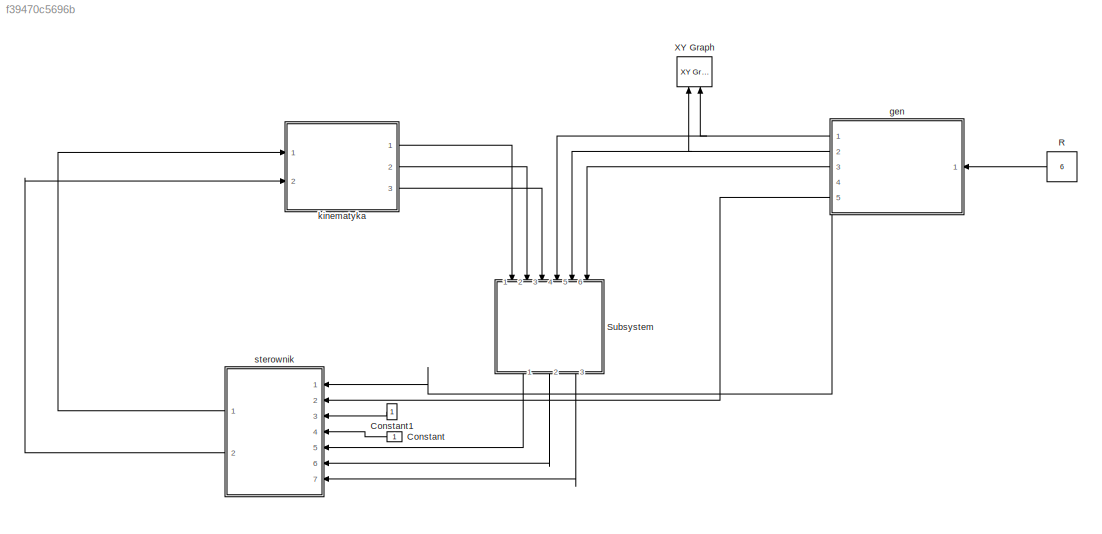
MODEL slx_f39470c5696b
KIND model
CONFIG AbsTol = auto
CONFIG FixedStep = auto
CONFIG MaxStep = auto
CONFIG MinStep = auto
CONFIG RelTol = 1e-3
CONFIG SampleTimeConstraint = Unconstrained
CONFIG Solver = VariableStepAuto
CONFIG SolverMode = Auto
CONFIG SolverName = VariableStepAuto
CONFIG StartTime = 0.0
CONFIG StopTime = 10.0
BLOCK [Constant] Constant
BLOCK [Constant] Constant1
BLOCK [Constant] R
  Value = 6
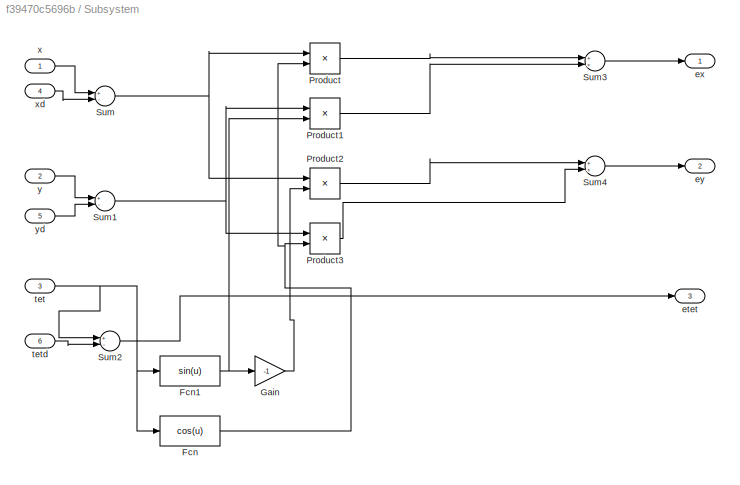
BLOCK [SubSystem] Subsystem
  Ports = [6, 3]
  RequestExecContextInheritance = off
  Variant = off
BLOCK [Fcn] Subsystem/Fcn
  Expr = cos(u)
BLOCK [Fcn] Subsystem/Fcn1
  Expr = sin(u)
BLOCK [Gain] Subsystem/Gain
  Gain = -1
  OutDataTypeStr = Inherit: Inherit via internal rule
  ParamDataTypeStr = Inherit: Inherit via internal rule
  SaturateOnIntegerOverflow = off
BLOCK [Product] Subsystem/Product
  InputSameDT = off
  OutDataTypeStr = Inherit: Inherit via internal rule
  Ports = [2, 1]
  RndMeth = Floor
  SaturateOnIntegerOverflow = off
BLOCK [Product] Subsystem/Product1
  InputSameDT = off
  OutDataTypeStr = Inherit: Inherit via internal rule
  Ports = [2, 1]
  RndMeth = Floor
  SaturateOnIntegerOverflow = off
BLOCK [Product] Subsystem/Product2
  InputSameDT = off
  OutDataTypeStr = Inherit: Inherit via internal rule
  Ports = [2, 1]
  RndMeth = Floor
  SaturateOnIntegerOverflow = off
BLOCK [Product] Subsystem/Product3
  InputSameDT = off
  OutDataTypeStr = Inherit: Inherit via internal rule
  Ports = [2, 1]
  RndMeth = Floor
  SaturateOnIntegerOverflow = off
BLOCK [Sum] Subsystem/Sum
  InputSameDT = off
  Inputs = +-
  OutDataTypeStr = Inherit: Inherit via internal rule
  Ports = [2, 1]
  SaturateOnIntegerOverflow = off
BLOCK [Sum] Subsystem/Sum1
  InputSameDT = off
  Inputs = +-
  OutDataTypeStr = Inherit: Inherit via internal rule
  Ports = [2, 1]
  SaturateOnIntegerOverflow = off
BLOCK [Sum] Subsystem/Sum2
  InputSameDT = off
  Inputs = +-
  OutDataTypeStr = Inherit: Inherit via internal rule
  Ports = [2, 1]
  SaturateOnIntegerOverflow = off
BLOCK [Sum] Subsystem/Sum3
  InputSameDT = off
  OutDataTypeStr = Inherit: Inherit via internal rule
  Ports = [2, 1]
  SaturateOnIntegerOverflow = off
BLOCK [Sum] Subsystem/Sum4
  InputSameDT = off
  OutDataTypeStr = Inherit: Inherit via internal rule
  Ports = [2, 1]
  SaturateOnIntegerOverflow = off
BLOCK [Outport] Subsystem/etet
  IconDisplay = Port number
  Port = 3
BLOCK [Outport] Subsystem/ex
  IconDisplay = Port number
BLOCK [Outport] Subsystem/ey
  IconDisplay = Port number
  Port = 2
BLOCK [Inport] Subsystem/tet
  IconDisplay = Port number
  Port = 3
BLOCK [Inport] Subsystem/tetd
  IconDisplay = Port number
  Port = 6
BLOCK [Inport] Subsystem/x
  IconDisplay = Port number
BLOCK [Inport] Subsystem/xd
  IconDisplay = Port number
  Port = 4
BLOCK [Inport] Subsystem/y
  IconDisplay = Port number
  Port = 2
BLOCK [Inport] Subsystem/yd
  IconDisplay = Port number
  Port = 5
BLOCK [Reference] XY Graph  REF=simulink/Sinks/XY Graph
  Ports = [2]
  SourceBlock = simulink/Sinks/XY Graph
  SourceType = XY scope.
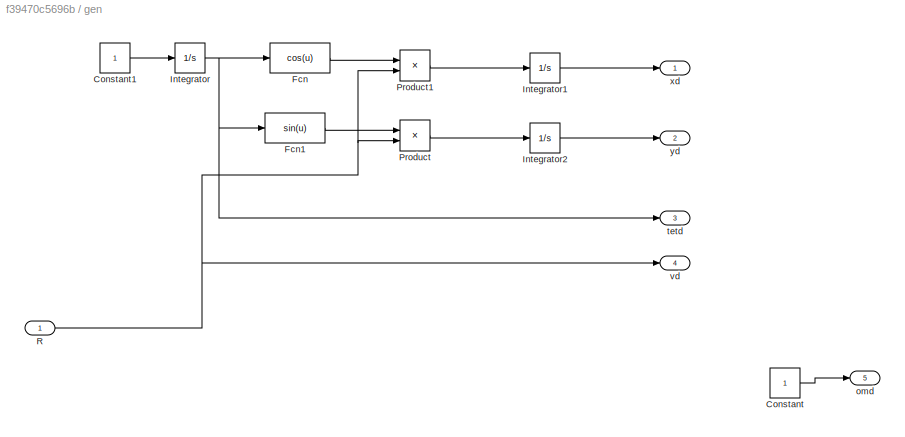
BLOCK [SubSystem] gen
  Ports = [1, 5]
  RequestExecContextInheritance = off
  Variant = off
BLOCK [Constant] gen/Constant
BLOCK [Constant] gen/Constant1
BLOCK [Fcn] gen/Fcn
  Expr = cos(u)
BLOCK [Fcn] gen/Fcn1
  Expr = sin(u)
BLOCK [Integrator] gen/Integrator
  Ports = [1, 1]
BLOCK [Integrator] gen/Integrator1
  Ports = [1, 1]
BLOCK [Integrator] gen/Integrator2
  InitialCondition = -6
  Ports = [1, 1]
BLOCK [Product] gen/Product
  InputSameDT = off
  OutDataTypeStr = Inherit: Inherit via internal rule
  Ports = [2, 1]
  RndMeth = Floor
  SaturateOnIntegerOverflow = off
BLOCK [Product] gen/Product1
  InputSameDT = off
  OutDataTypeStr = Inherit: Inherit via internal rule
  Ports = [2, 1]
  RndMeth = Floor
  SaturateOnIntegerOverflow = off
BLOCK [Inport] gen/R
  IconDisplay = Port number
BLOCK [Outport] gen/omd
  IconDisplay = Port number
  Port = 5
BLOCK [Outport] gen/tetd
  IconDisplay = Port number
  Port = 3
BLOCK [Outport] gen/vd
  IconDisplay = Port number
  Port = 4
BLOCK [Outport] gen/xd
  IconDisplay = Port number
BLOCK [Outport] gen/yd
  IconDisplay = Port number
  Port = 2
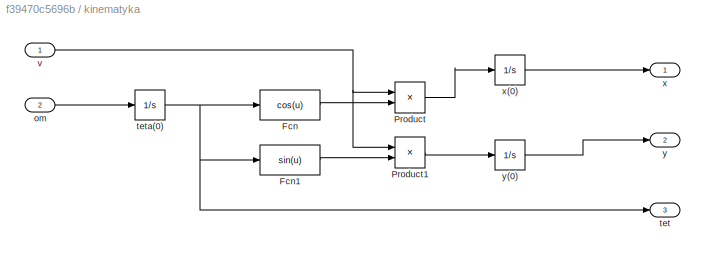
BLOCK [SubSystem] kinematyka
  Ports = [2, 3]
  RequestExecContextInheritance = off
  Variant = off
BLOCK [Fcn] kinematyka/Fcn
  Expr = cos(u)
BLOCK [Fcn] kinematyka/Fcn1
  Expr = sin(u)
BLOCK [Product] kinematyka/Product
  InputSameDT = off
  OutDataTypeStr = Inherit: Inherit via internal rule
  Ports = [2, 1]
  RndMeth = Floor
  SaturateOnIntegerOverflow = off
BLOCK [Product] kinematyka/Product1
  InputSameDT = off
  OutDataTypeStr = Inherit: Inherit via internal rule
  Ports = [2, 1]
  RndMeth = Floor
  SaturateOnIntegerOverflow = off
BLOCK [Inport] kinematyka/om
  IconDisplay = Port number
  Port = 2
BLOCK [Outport] kinematyka/tet
  IconDisplay = Port number
  Port = 3
BLOCK [Integrator] kinematyka/teta(0)
  Ports = [1, 1]
BLOCK [Inport] kinematyka/v
  IconDisplay = Port number
BLOCK [Outport] kinematyka/x
  IconDisplay = Port number
BLOCK [Integrator] kinematyka/x(0)
  Ports = [1, 1]
BLOCK [Outport] kinematyka/y
  IconDisplay = Port number
  Port = 2
BLOCK [Integrator] kinematyka/y(0)
  InitialCondition = -6
  Ports = [1, 1]
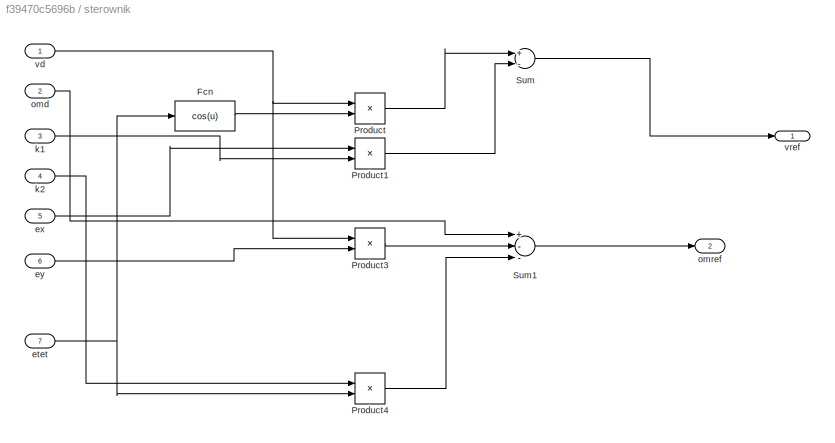
BLOCK [SubSystem] sterownik
  Ports = [7, 2]
  RequestExecContextInheritance = off
  Variant = off
BLOCK [Fcn] sterownik/Fcn
  Expr = cos(u)
BLOCK [Product] sterownik/Product
  InputSameDT = off
  OutDataTypeStr = Inherit: Inherit via internal rule
  Ports = [2, 1]
  RndMeth = Floor
  SaturateOnIntegerOverflow = off
BLOCK [Product] sterownik/Product1
  InputSameDT = off
  OutDataTypeStr = Inherit: Inherit via internal rule
  Ports = [2, 1]
  RndMeth = Floor
  SaturateOnIntegerOverflow = off
BLOCK [Product] sterownik/Product3
  InputSameDT = off
  OutDataTypeStr = Inherit: Inherit via internal rule
  Ports = [2, 1]
  RndMeth = Floor
  SaturateOnIntegerOverflow = off
BLOCK [Product] sterownik/Product4
  InputSameDT = off
  OutDataTypeStr = Inherit: Inherit via internal rule
  Ports = [2, 1]
  RndMeth = Floor
  SaturateOnIntegerOverflow = off
BLOCK [Sum] sterownik/Sum
  InputSameDT = off
  Inputs = +-
  OutDataTypeStr = Inherit: Inherit via internal rule
  Ports = [2, 1]
  SaturateOnIntegerOverflow = off
BLOCK [Sum] sterownik/Sum1
  InputSameDT = off
  Inputs = +--
  OutDataTypeStr = Inherit: Inherit via internal rule
  Ports = [3, 1]
  SaturateOnIntegerOverflow = off
BLOCK [Inport] sterownik/etet
  IconDisplay = Port number
  Port = 7
BLOCK [Inport] sterownik/ex
  IconDisplay = Port number
  Port = 5
BLOCK [Inport] sterownik/ey
  IconDisplay = Port number
  Port = 6
BLOCK [Inport] sterownik/k1
  IconDisplay = Port number
  Port = 3
BLOCK [Inport] sterownik/k2
  IconDisplay = Port number
  Port = 4
BLOCK [Inport] sterownik/omd
  IconDisplay = Port number
  Port = 2
BLOCK [Outport] sterownik/omref
  IconDisplay = Port number
  Port = 2
BLOCK [Inport] sterownik/vd
  IconDisplay = Port number
BLOCK [Outport] sterownik/vref
  IconDisplay = Port number
LINE Constant1:1 -> sterownik:3
LINE Constant:1 -> sterownik:4
LINE R:1 -> gen:1
NET Subsystem/Fcn1:1 -> Subsystem/Gain:1, Subsystem/Product1:2
NET Subsystem/Fcn:1 -> Subsystem/Product3:2, Subsystem/Product:2
LINE Subsystem/Gain:1 -> Subsystem/Product2:2
LINE Subsystem/Product1:1 -> Subsystem/Sum3:2
LINE Subsystem/Product2:1 -> Subsystem/Sum4:1
LINE Subsystem/Product3:1 -> Subsystem/Sum4:2
LINE Subsystem/Product:1 -> Subsystem/Sum3:1
NET Subsystem/Sum1:1 -> Subsystem/Product1:1, Subsystem/Product3:1
LINE Subsystem/Sum2:1 -> Subsystem/etet:1
LINE Subsystem/Sum3:1 -> Subsystem/ex:1
LINE Subsystem/Sum4:1 -> Subsystem/ey:1
NET Subsystem/Sum:1 -> Subsystem/Product2:1, Subsystem/Product:1
NET Subsystem/tet:1 -> Subsystem/Fcn1:1, Subsystem/Fcn:1, Subsystem/Sum2:1
LINE Subsystem/tetd:1 -> Subsystem/Sum2:2
LINE Subsystem/x:1 -> Subsystem/Sum:1
LINE Subsystem/xd:1 -> Subsystem/Sum:2
LINE Subsystem/y:1 -> Subsystem/Sum1:1
LINE Subsystem/yd:1 -> Subsystem/Sum1:2
LINE Subsystem:1 -> sterownik:5
LINE Subsystem:2 -> sterownik:6
LINE Subsystem:3 -> sterownik:7
LINE gen/Constant1:1 -> gen/Integrator:1
LINE gen/Constant:1 -> gen/omd:1
LINE gen/Fcn1:1 -> gen/Product:1
LINE gen/Fcn:1 -> gen/Product1:1
LINE gen/Integrator1:1 -> gen/xd:1
LINE gen/Integrator2:1 -> gen/yd:1
NET gen/Integrator:1 -> gen/Fcn1:1, gen/Fcn:1, gen/tetd:1
LINE gen/Product1:1 -> gen/Integrator1:1
LINE gen/Product:1 -> gen/Integrator2:1
NET gen/R:1 -> gen/Product1:2, gen/Product:2, gen/vd:1
NET gen:1 -> Subsystem:4, XY Graph:2
NET gen:2 -> Subsystem:5, XY Graph:1
LINE gen:3 -> Subsystem:6
LINE gen:4 -> sterownik:1
LINE gen:5 -> sterownik:2
LINE kinematyka/Fcn1:1 -> kinematyka/Product1:2
LINE kinematyka/Fcn:1 -> kinematyka/Product:2
LINE kinematyka/Product1:1 -> kinematyka/y(0):1
LINE kinematyka/Product:1 -> kinematyka/x(0):1
LINE kinematyka/om:1 -> kinematyka/teta(0):1
NET kinematyka/teta(0):1 -> kinematyka/Fcn1:1, kinematyka/Fcn:1, kinematyka/tet:1
NET kinematyka/v:1 -> kinematyka/Product1:1, kinematyka/Product:1
LINE kinematyka/x(0):1 -> kinematyka/x:1
LINE kinematyka/y(0):1 -> kinematyka/y:1
LINE kinematyka:1 -> Subsystem:1
LINE kinematyka:2 -> Subsystem:2
LINE kinematyka:3 -> Subsystem:3
LINE sterownik/Fcn:1 -> sterownik/Product:2
LINE sterownik/Product1:1 -> sterownik/Sum:2
LINE sterownik/Product3:1 -> sterownik/Sum1:2
LINE sterownik/Product4:1 -> sterownik/Sum1:3
LINE sterownik/Product:1 -> sterownik/Sum:1
LINE sterownik/Sum1:1 -> sterownik/omref:1
LINE sterownik/Sum:1 -> sterownik/vref:1
NET sterownik/etet:1 -> sterownik/Fcn:1, sterownik/Product4:2
LINE sterownik/ex:1 -> sterownik/Product1:1
LINE sterownik/ey:1 -> sterownik/Product3:2
LINE sterownik/k1:1 -> sterownik/Product1:2
LINE sterownik/k2:1 -> sterownik/Product4:1
LINE sterownik/omd:1 -> sterownik/Sum1:1
NET sterownik/vd:1 -> sterownik/Product3:1, sterownik/Product:1
LINE sterownik:1 -> kinematyka:1
LINE sterownik:2 -> kinematyka:2
note: NET lines group one-source signal fan-out (src -> all destinations, sorted); 1:1 wires keep LINE
